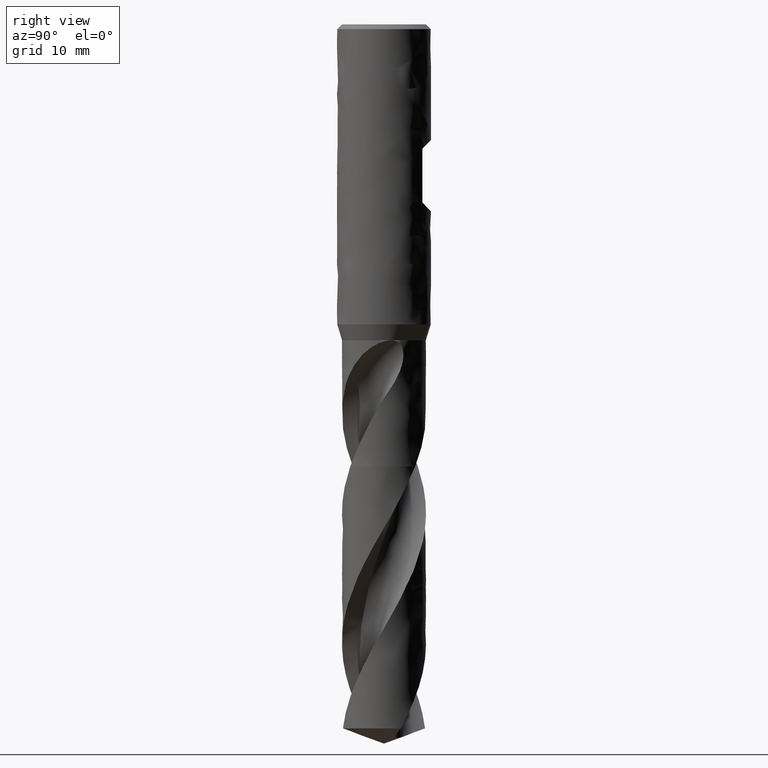
[diagram: clean part render]
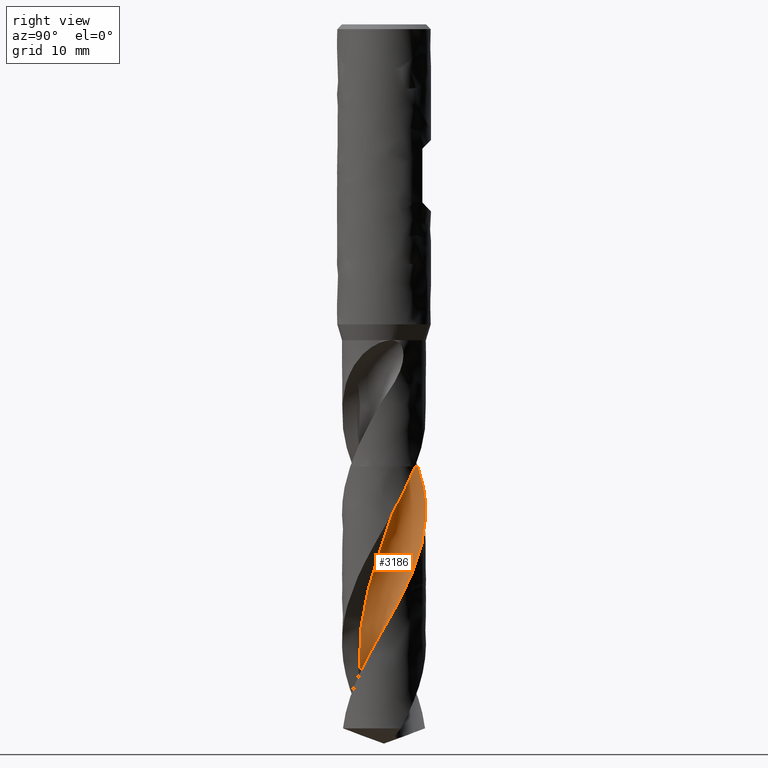
[diagram: same view with one face highlighted and labeled with its STEP entity id]
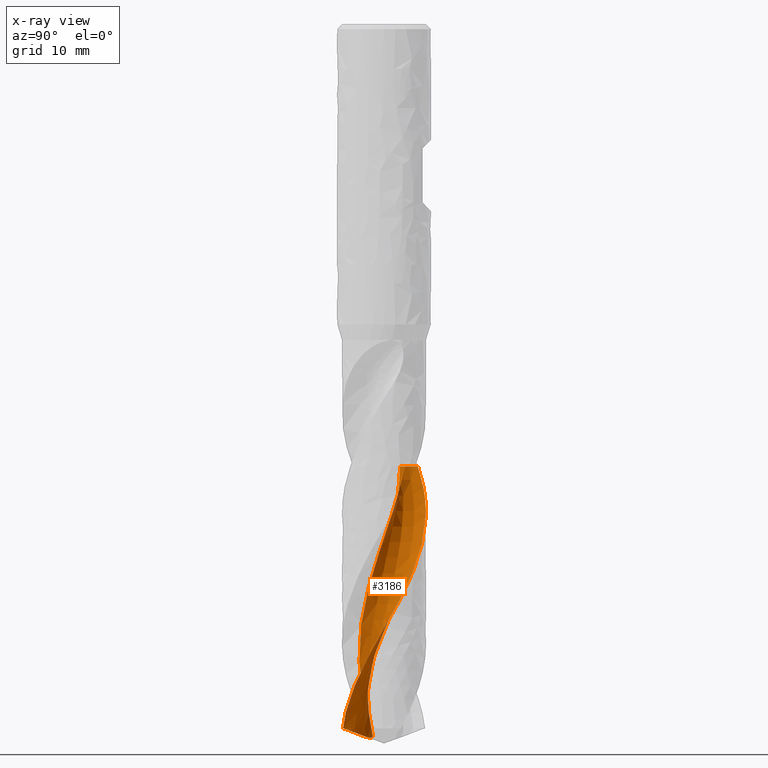
[diagram: x-ray of the same camera — body ghosted, the highlighted face saturated]
A machine part, right view. The second image highlights one B-rep face of the part: STEP entity #3186.
The next image is the same camera in x-ray: the body ghosted, the highlighted face saturated — about 0% of this face is hidden behind the body in this view.
In plain terms, the highlighted face is a freeform B-spline surface patch.
Its self-contained STEP definition (entity closure, byte-faithful):
#2135 = VERTEX_POINT('', #2136);
#2136 = CARTESIAN_POINT('', (2.09222723034149, 3.10219535097952, -65.75));
#2142 = EDGE_CURVE('', #2135, #2143, #2145, .T.);
#2143 = VERTEX_POINT('', #2144);
#2144 = CARTESIAN_POINT('', (-3.71662516383442, 5.02485794740039, -65.75));
#2145 = B_SPLINE_CURVE_WITH_KNOTS('', 3, (#2146, #2147, #2148, #2149, #2150, #2151, #2152, #2153, #2154, #2155, #2156, #2157, #2158, #2159, #2160, #2161, #2162, #2163, #2164, #2165, #2166, #2167, #2168, #2169, #2170, #2171, #2172, #2173, #2174, #2175, #2176, #2177, #2178, #2179, #2180, #2181, #2182, #2183, #2184, #2185, #2186, #2187, #2188, #2189, #2190, #2191, #2192, #2193, #2194, #2195, #2196, #2197, #2198, #2199, #2200, #2201, #2202, #2203, #2204, #2205, #2206, #2207, #2208, #2209, #2210, #2211, #2212, #2213, #2214, #2215, #2216, #2217, #2218, #2219, #2220, #2221, #2222, #2223, #2224), .UNSPECIFIED., .F., .U., (4, 3, 3, 3, 3, 3, 3, 3, 3, 3, 3, 3, 3, 3, 3, 3, 3, 3, 3, 3, 3, 3, 3, 3, 3, 3, 4), (0., 0.297014510261229, 0.593782973224138, 0.890310306346069, 1.1866005424003, 1.48265688577229, 1.77848175643172, 2.07407682288143, 2.3694430250398, 2.66458058771703, 2.95948902508184, 3.25416713627155, 3.54861299206276, 3.58751292539137, 3.61345819515835, 3.91046052384063, 4.20721706772343, 4.50373269941086, 4.8000114098919, 5.09605636419666, 5.39186994480124, 5.68745378406375, 5.98280878663291, 6.27793514247572, 6.5728323309087, 6.86749911577389, 7.15439348509255), .UNSPECIFIED.);
#2146 = CARTESIAN_POINT('', (2.09222723034149, 3.10219535097952, -65.75));
#2147 = CARTESIAN_POINT('', (2.01249219420907, 3.0435073478307, -65.75));
#2148 = CARTESIAN_POINT('', (1.93036695514038, 2.98793592757553, -65.75));
#2149 = CARTESIAN_POINT('', (1.84623743688504, 2.93574223199112, -65.75));
#2150 = CARTESIAN_POINT('', (1.76217761165801, 2.88359177374813, -65.75));
#2151 = CARTESIAN_POINT('', (1.67598532410208, 2.83473185057041, -65.75));
#2152 = CARTESIAN_POINT('', (1.58806493988209, 2.78939168569685, -65.75));
#2153 = CARTESIAN_POINT('', (1.50021599259328, 2.74408836054216, -65.75));
#2154 = CARTESIAN_POINT('', (1.41050454861415, 2.70222830797167, -65.75));
#2155 = CARTESIAN_POINT('', (1.31935080064919, 2.6640075931463, -65.75));
#2156 = CARTESIAN_POINT('', (1.22826993731892, 2.62581743880692, -65.75));
#2157 = CARTESIAN_POINT('', (1.13560704777205, 2.59120124191503, -65.75));
#2158 = CARTESIAN_POINT('', (1.0417954557945, 2.5603208798043, -65.75));
#2159 = CARTESIAN_POINT('', (0.948057919058069, 2.52946489477335, -65.75));
#2160 = CARTESIAN_POINT('', (0.853027552547269, 2.5022907988164, -65.75));
#2161 = CARTESIAN_POINT('', (0.75714805067193, 2.47892546710935, -65.75));
#2162 = CARTESIAN_POINT('', (0.661343512528576, 2.45557840367059, -65.75));
#2163 = CARTESIAN_POINT('', (0.56454224059093, 2.4359978488463, -65.75));
#2164 = CARTESIAN_POINT('', (0.467195491944108, 2.42027508102486, -65.75));
#2165 = CARTESIAN_POINT('', (0.369924364703264, 2.40456452704543, -65.75));
#2166 = CARTESIAN_POINT('', (0.271957636574711, 2.39268137539717, -65.75));
#2167 = CARTESIAN_POINT('', (0.173751289197768, 2.38468093566399, -65.75));
#2168 = CARTESIAN_POINT('', (0.0756209780225344, 2.37668669026616, -65.75));
#2169 = CARTESIAN_POINT('', (-0.0229006514128432, 2.37255674890775, -65.75));
#2170 = CARTESIAN_POINT('', (-0.121355743693428, 2.37231030449114, -65.75));
#2171 = CARTESIAN_POINT('', (-0.219734623052391, 2.37206405084423, -65.75));
#2172 = CARTESIAN_POINT('', (-0.318199288407277, 2.37569489380469, -65.75));
#2173 = CARTESIAN_POINT('', (-0.416292856405533, 2.38318598599179, -65.75));
#2174 = CARTESIAN_POINT('', (-0.514310271035814, 2.39067126258964, -65.75));
#2175 = CARTESIAN_POINT('', (-0.612108590954305, 2.40202235170289, -65.75));
#2176 = CARTESIAN_POINT('', (-0.709234728199119, 2.41718666508834, -65.75));
#2177 = CARTESIAN_POINT('', (-0.806285009046286, 2.43233913500695, -65.75));
#2178 = CARTESIAN_POINT('', (-0.902813856582139, 2.45132223840752, -65.75));
#2179 = CARTESIAN_POINT('', (-0.998374761623921, 2.47404816599572, -65.75));
#2180 = CARTESIAN_POINT('', (-1.09386034876716, 2.49675618177042, -65.75));
#2181 = CARTESIAN_POINT('', (-1.18852657436075, 2.52323608671275, -65.75));
#2182 = CARTESIAN_POINT('', (-1.28193623426634, 2.5533655866893, -65.75));
#2183 = CARTESIAN_POINT('', (-1.29427680375002, 2.55734606567129, -65.75));
#2184 = CARTESIAN_POINT('', (-1.30659689372086, 2.56139060484027, -65.75));
#2185 = CARTESIAN_POINT('', (-1.31889550995814, 2.56549887780537, -65.75));
#2186 = CARTESIAN_POINT('', (-1.32709837532918, 2.56823899176535, -65.75));
#2187 = CARTESIAN_POINT('', (-1.33529181080564, 2.57100749858763, -65.75));
#2188 = CARTESIAN_POINT('', (-1.34347552224454, 2.5738042988833, -65.75));
#2189 = CARTESIAN_POINT('', (-1.43715662004955, 2.60582000764762, -65.75));
#2190 = CARTESIAN_POINT('', (-1.5296412893836, 2.64157632904974, -65.75));
#2191 = CARTESIAN_POINT('', (-1.62049496096486, 2.68090525039063, -65.75));
#2192 = CARTESIAN_POINT('', (-1.71127344643041, 2.72020162501349, -65.75));
#2193 = CARTESIAN_POINT('', (-1.80056564394797, 2.76312615213074, -65.75));
#2194 = CARTESIAN_POINT('', (-1.88795267843024, 2.8094774701952, -65.75));
#2195 = CARTESIAN_POINT('', (-1.97526877057692, 2.85579115944229, -65.75));
#2196 = CARTESIAN_POINT('', (-2.06081916497615, 2.90559840109003, -65.75));
#2197 = CARTESIAN_POINT('', (-2.14420319013859, 2.95866592512454, -65.75));
#2198 = CARTESIAN_POINT('', (-2.22752058999793, 3.01169104727372, -65.75));
#2199 = CARTESIAN_POINT('', (-2.30880500147701, 3.06805391658055, -65.75));
#2200 = CARTESIAN_POINT('', (-2.38767634003427, 3.12749098121569, -65.75));
#2201 = CARTESIAN_POINT('', (-2.46648545116221, 3.18688115155682, -65.75));
#2202 = CARTESIAN_POINT('', (-2.54300799251727, 3.24943312004037, -65.75));
#2203 = CARTESIAN_POINT('', (-2.61688670971957, 3.31485485552993, -65.75));
#2204 = CARTESIAN_POINT('', (-2.69070768706879, 3.3802254607138, -65.75));
#2205 = CARTESIAN_POINT('', (-2.76200372327796, 3.44856295254131, -65.75));
#2206 = CARTESIAN_POINT('', (-2.83044248398811, 3.51954878740546, -65.75));
#2207 = CARTESIAN_POINT('', (-2.89882809226116, 3.59047949166696, -65.75));
#2208 = CARTESIAN_POINT('', (-2.96446700028252, 3.66416450236817, -65.75));
#2209 = CARTESIAN_POINT('', (-3.02705371794805, 3.74026088203081, -65.75));
#2210 = CARTESIAN_POINT('', (-3.08959198189043, 3.8162983489872, -65.75));
#2211 = CARTESIAN_POINT('', (-3.14917969378748, 3.89486127161846, -65.75));
#2212 = CARTESIAN_POINT('', (-3.20553995515333, 3.97558457542128, -65.75));
#2213 = CARTESIAN_POINT('', (-3.26185658567106, 4.05624538792045, -65.75));
#2214 = CARTESIAN_POINT('', (-3.31503789964963, 4.1391880285124, -65.75));
#2215 = CARTESIAN_POINT('', (-3.36483715056458, 4.22402766638412, -65.75));
#2216 = CARTESIAN_POINT('', (-3.4145977320584, 4.30880142576116, -65.75));
#2217 = CARTESIAN_POINT('', (-3.46105837754814, 4.39560018882727, -65.75));
#2218 = CARTESIAN_POINT('', (-3.50400385680113, 4.48402185789798, -65.75));
#2219 = CARTESIAN_POINT('', (-3.54691578269375, 4.57237444300036, -65.75));
#2220 = CARTESIAN_POINT('', (-3.58638422722846, 4.66248366695025, -65.75));
#2221 = CARTESIAN_POINT('', (-3.62222663700045, 4.75393274753515, -65.75));
#2222 = CARTESIAN_POINT('', (-3.6571236327752, 4.84296967889876, -65.75));
#2223 = CARTESIAN_POINT('', (-3.68863573000977, 4.93341031354849, -65.75));
#2224 = CARTESIAN_POINT('', (-3.71662515322433, 5.02485795064782, -65.75));
#2989 = EDGE_CURVE('', #2143, #2990, #2992, .T.);
#2990 = VERTEX_POINT('', #2991);
#2991 = CARTESIAN_POINT('', (-2.12546959105404, 5.87748917629838, -68.8945567822441));
#2992 = B_SPLINE_CURVE_WITH_KNOTS('', 3, (#2993, #2994, #2995, #2996, #2997, #2998, #2999, #3000, #3001, #3002, #3003, #3004, #3005, #3006, #3007, #3008), .UNSPECIFIED., .F., .U., (4, 3, 3, 3, 3, 4), (7.55446952319501, 7.57539301092448, 8.57247096501074, 9.56935932184845, 10.5660466159, 11.1832932503648), .UNSPECIFIED.);
#2993 = CARTESIAN_POINT('', (-3.71662516383442, 5.02485794740039, -65.75));
#2994 = CARTESIAN_POINT('', (-3.71382484418936, 5.02692919768618, -65.7560424933045));
#2995 = CARTESIAN_POINT('', (-3.71102278295596, 5.02899811453846, -65.7620850448587));
#2996 = CARTESIAN_POINT('', (-3.70821902957221, 5.03106466155212, -65.768127556224));
#2997 = CARTESIAN_POINT('', (-3.57461029646913, 5.12954291216897, -66.0560745250821));
#2998 = CARTESIAN_POINT('', (-3.43707942075809, 5.2226926503053, -66.344099700089));
#2999 = CARTESIAN_POINT('', (-3.29609816058956, 5.3102012123608, -66.6320740950077));
#3000 = CARTESIAN_POINT('', (-3.15514370841424, 5.39769313441086, -66.9199937307647));
#3001 = CARTESIAN_POINT('', (-3.01068356524325, 5.4795800794821, -67.2079759711759));
#3002 = CARTESIAN_POINT('', (-2.86324181499778, 5.55556894555798, -67.4959123064717));
#3003 = CARTESIAN_POINT('', (-2.71582980233415, 5.63154248541099, -67.7837905677801));
#3004 = CARTESIAN_POINT('', (-2.56537982397294, 5.7016502078226, -68.0717367502885));
#3005 = CARTESIAN_POINT('', (-2.41243128501278, 5.76564612988791, -68.359638539026));
#3006 = CARTESIAN_POINT('', (-2.31771053209168, 5.80527868841457, -68.5379355948982));
#3007 = CARTESIAN_POINT('', (-2.2220132534518, 5.84257620368706, -68.7162508472444));
#3008 = CARTESIAN_POINT('', (-2.12546959105388, 5.87748917629844, -68.8945567822444));
#3011 = VERTEX_POINT('', #3012);
#3012 = CARTESIAN_POINT('', (2.56306106294898, -5.70028227262429, -102.428453775909));
#3148 = EDGE_CURVE('', #3011, #3149, #3151, .T.);
#3149 = VERTEX_POINT('', #3150);
#3150 = CARTESIAN_POINT('', (1.32876363019772, -6.10711775022094, -104.725186035836));
#3151 = B_SPLINE_CURVE_WITH_KNOTS('', 3, (#3152, #3153, #3154, #3155, #3156, #3157, #3158, #3159, #3160, #3161), .UNSPECIFIED., .F., .U., (4, 3, 3, 4), (0., 0.99659164259794, 1.99299236130841, 2.639953785996), .UNSPECIFIED.);
#3152 = CARTESIAN_POINT('', (2.563061062949, -5.70028227262429, -102.428453775909));
#3153 = CARTESIAN_POINT('', (2.41359877592484, -5.76748613199993, -102.717416844768));
#3154 = CARTESIAN_POINT('', (2.26148082721132, -5.82881176622048, -103.006445135786));
#3155 = CARTESIAN_POINT('', (2.1072380236213, -5.88405029820482, -103.295431037253));
#3156 = CARTESIAN_POINT('', (1.95302476938169, -5.93927824776521, -103.584361575712));
#3157 = CARTESIAN_POINT('', (1.79662747761599, -5.9884429600531, -103.873356995217));
#3158 = CARTESIAN_POINT('', (1.63858970167529, -6.03137826616461, -104.162309121208));
#3159 = CARTESIAN_POINT('', (1.53597602149913, -6.05925609311686, -104.349925283648));
#3160 = CARTESIAN_POINT('', (1.43265081162183, -6.08451436938468, -104.53756112887));
#3161 = CARTESIAN_POINT('', (1.32876363019772, -6.10711775022094, -104.725186035836));
#3186 = ADVANCED_FACE('', (#3187), #3404, .T.);
#3187 = FACE_OUTER_BOUND('', #3188, .T.);
#3188 = EDGE_LOOP('', (#3189, #3190, #3233, #3366, #3367, #3403));
#3189 = ORIENTED_EDGE('', *, *, #2142, .F.);
#3190 = ORIENTED_EDGE('', *, *, #3191, .F.);
#3191 = EDGE_CURVE('', #3192, #2135, #3194, .T.);
#3192 = VERTEX_POINT('', #3193);
#3193 = CARTESIAN_POINT('', (-3.33309751933911, -1.70166304379255, -105.637895377887));
#3194 = (
   BOUNDED_CURVE ()
   B_SPLINE_CURVE (3, (#3195, #3196, #3197, #3198, #3199, #3200, #3201, #3202, #3203, #3204, #3205, #3206, #3207, #3208, #3209, #3210, #3211, #3212, #3213, #3214, #3215, #3216, #3217, #3218, #3219, #3220, #3221, #3222, #3223, #3224, #3225, #3226, #3227, #3228, #3229, #3230, #3231, #3232), .UNSPECIFIED., .F., .U.)
   B_SPLINE_CURVE_WITH_KNOTS ((4, 1, 1, 1, 1, 1, 1, 1, 1, 1, 1, 1, 1, 1, 1, 1, 1, 1, 1, 1, 1, 1, 1, 1, 1, 1, 1, 1, 1, 1, 1, 1, 1, 1, 1, 4), (1.41210462211272, 2.31038461538462, 3.46557692307692, 4.62076923076923, 5.77596153846154, 6.93115384615385, 8.08634615384615, 9.24153846153846, 10.3967307692308, 11.5519230769231, 12.7071153846154, 13.8623076923077, 15.0175, 16.1726923076923, 17.3278846153846, 18.4830769230769, 19.6382692307692, 20.7934615384615, 21.9486538461538, 23.1038461538461, 24.2590384615385, 25.4142307692308, 26.5694230769231, 27.7246153846154, 28.8798076923077, 30.035, 31.1901923076923, 32.3453846153846, 33.5005769230769, 34.6557692307692, 35.8109615384615, 36.9661538461538, 38.1213461538462, 39.2765384615385, 40.4317307692308, 41.3), .UNSPECIFIED.)
   CURVE ()
   GEOMETRIC_REPRESENTATION_ITEM ()
   RATIONAL_B_SPLINE_CURVE ((1., 1., 1., 1., 1., 1., 1., 1., 1., 1., 1., 1., 1., 1., 1., 1., 1., 1., 1., 1., 1., 1., 1., 1., 1., 1., 1., 1., 1., 1., 1., 1., 1., 1., 1., 1., 1., 1.))
   REPRESENTATION_ITEM ('')
);
#3195 = CARTESIAN_POINT('', (-3.33309751933911, -1.70166304379254, -105.637895377887));
#3196 = CARTESIAN_POINT('', (-3.28426278029696, -1.79176468404104, -105.338468713463));
#3197 = CARTESIAN_POINT('', (-3.16440122014795, -1.99300794079216, -104.653977946475));
#3198 = CARTESIAN_POINT('', (-2.94916200744652, -2.28826212789611, -103.584423076923));
#3199 = CARTESIAN_POINT('', (-2.68540059389889, -2.58054530868536, -102.429230769231));
#3200 = CARTESIAN_POINT('', (-2.39331095459424, -2.84321405729384, -101.274038461538));
#3201 = CARTESIAN_POINT('', (-2.07614004645534, -3.07359202170212, -100.118846153846));
#3202 = CARTESIAN_POINT('', (-1.73737859258955, -3.2693491131357, -98.9636538461538));
#3203 = CARTESIAN_POINT('', (-1.38072716343748, -3.42852471552745, -97.8084615384615));
#3204 = CARTESIAN_POINT('', (-1.01005739812146, -3.549545311931, -96.6532692307692));
#3205 = CARTESIAN_POINT('', (-0.62937257523785, -3.63123877651107, -95.4980769230769));
#3206 = CARTESIAN_POINT('', (-0.242766878146462, -3.67284458297022, -94.3428846153846));
#3207 = CARTESIAN_POINT('', (0.145615987448473, -3.67402002809336, -93.1876923076923));
#3208 = CARTESIAN_POINT('', (0.531624512180888, -3.63484238687778, -92.0325));
#3209 = CARTESIAN_POINT('', (0.911141032293483, -3.55580700955868, -90.8773076923077));
#3210 = CARTESIAN_POINT('', (1.28012293157413, -3.43782139044858, -89.7221153846154));
#3211 = CARTESIAN_POINT('', (1.6346430169727, -3.2821952774299, -88.5669230769231));
#3212 = CARTESIAN_POINT('', (1.97092869935666, -3.0906269238025, -87.4117307692308));
#3213 = CARTESIAN_POINT('', (2.28539962190615, -2.86518561749383, -86.2565384615385));
#3214 = CARTESIAN_POINT('', (2.57470339309047, -2.6082906543626, -85.1013461538462));
#3215 = CARTESIAN_POINT('', (2.83574909811711, -2.3226869527362, -83.9461538461539));
#3216 = CARTESIAN_POINT('', (3.06573828228179, -2.01141753508234, -82.7909615384615));
#3217 = CARTESIAN_POINT('', (3.2621931215765, -1.67779312967242, -81.6357692307692));
#3218 = CARTESIAN_POINT('', (3.42298152009816, -1.32535917003211, -80.4805769230769));
#3219 = CARTESIAN_POINT('', (3.54633890005647, -0.957860492803461, -79.3253846153846));
#3220 = CARTESIAN_POINT('', (3.63088647839688, -0.579204054897017, -78.1701923076923));
#3221 = CARTESIAN_POINT('', (3.67564585379312, -0.19342000947049, -77.015));
#3222 = CARTESIAN_POINT('', (3.68004975976666, 0.19537850702174, -75.8598076923077));
#3223 = CARTESIAN_POINT('', (3.64394887022815, 0.583036502096074, -74.7046153846154));
#3224 = CARTESIAN_POINT('', (3.56761458572894, 0.965398821023587, -73.5494230769231));
#3225 = CARTESIAN_POINT('', (3.45173773288669, 1.33835191623989, -72.3942307692308));
#3226 = CARTESIAN_POINT('', (3.29742325860166, 1.69786570656426, -71.2390384615385));
#3227 = CARTESIAN_POINT('', (3.10618061147693, 2.04003364095605, -70.0838461538461));
#3228 = CARTESIAN_POINT('', (2.8799111243509, 2.36111617064373, -68.9286538461539));
#3229 = CARTESIAN_POINT('', (2.62088782963223, 2.6575663917448, -67.7734615384615));
#3230 = CARTESIAN_POINT('', (2.355684037953, 2.90388154867323, -66.7139102564103));
#3231 = CARTESIAN_POINT('', (2.17295799076535, 3.04480854232061, -66.0394230769231));
#3232 = CARTESIAN_POINT('', (2.09222723034149, 3.10219535097952, -65.75));
#3233 = ORIENTED_EDGE('', *, *, #3234, .T.);
#3234 = EDGE_CURVE('', #3192, #3149, #3235, .T.);
#3235 = B_SPLINE_CURVE_WITH_KNOTS('', 3, (#3236, #3237, #3238, #3239, #3240, #3241, #3242, #3243, #3244, #3245, #3246, #3247, #3248, #3249, #3250, #3251, #3252, #3253, #3254, #3255, #3256, #3257, #3258, #3259, #3260, #3261, #3262, #3263, #3264, #3265, #3266, #3267, #3268, #3269, #3270, #3271, #3272, #3273, #3274, #3275, #3276, #3277, #3278, #3279, #3280, #3281, #3282, #3283, #3284, #3285, #3286, #3287, #3288, #3289, #3290, #3291, #3292, #3293, #3294, #3295, #3296, #3297, #3298, #3299, #3300, #3301, #3302, #3303, #3304, #3305, #3306, #3307, #3308, #3309, #3310, #3311, #3312, #3313, #3314, #3315, #3316, #3317, #3318, #3319, #3320, #3321, #3322, #3323, #3324, #3325, #3326, #3327, #3328, #3329, #3330, #3331, #3332, #3333, #3334, #3335, #3336, #3337, #3338, #3339, #3340, #3341, #3342, #3343, #3344, #3345, #3346, #3347, #3348, #3349, #3350, #3351, #3352, #3353, #3354, #3355, #3356, #3357, #3358, #3359, #3360, #3361, #3362, #3363, #3364, #3365), .UNSPECIFIED., .F., .U., (4, 3, 3, 3, 3, 3, 3, 3, 3, 3, 3, 3, 3, 3, 3, 3, 3, 3, 3, 3, 3, 3, 3, 3, 3, 3, 3, 3, 3, 3, 3, 3, 3, 3, 3, 3, 3, 3, 3, 3, 3, 3, 3, 4), (0., 0.197253905560519, 0.394386729142981, 0.591362583388969, 0.788143772579992, 0.98469617466098, 1.18099786216172, 1.31192652934068, 1.44279127386544, 1.57360525332034, 1.7043873550422, 1.83516126872887, 1.96595344147953, 2.09679008338859, 2.22769376737675, 2.35868042529797, 2.48975751021621, 2.6209237406035, 2.75217032854413, 2.88348317484926, 3.01484536063895, 3.14623937499218, 3.27764876460937, 3.40905913413271, 3.60615081018889, 3.64507649742517, 3.84312761284134, 3.88208776611527, 3.92106437372505, 4.11957304255541, 4.31776717477151, 4.51569087916405, 4.71338242329098, 4.91087413320279, 5.10819286167034, 5.30536067120146, 5.50239554939481, 5.69931207163639, 5.99432916068265, 6.28902883680321, 6.58344428842997, 6.87759810890358, 7.17150462234195, 7.45793292600682), .UNSPECIFIED.);
#3236 = CARTESIAN_POINT('', (-3.33309751933911, -1.70166304379255, -105.637895377887));
#3237 = CARTESIAN_POINT('', (-3.27293787917276, -1.68677760297301, -105.65986069241));
#3238 = CARTESIAN_POINT('', (-3.21217637223552, -1.67391883861992, -105.681657901912));
#3239 = CARTESIAN_POINT('', (-3.15098442958481, -1.66316972229604, -105.703180828021));
#3240 = CARTESIAN_POINT('', (-3.0898300488847, -1.65242720419014, -105.724690542537));
#3241 = CARTESIAN_POINT('', (-3.02817931437933, -1.6437803145916, -105.745949834207));
#3242 = CARTESIAN_POINT('', (-2.9662138003387, -1.63729893892265, -105.76683510729));
#3243 = CARTESIAN_POINT('', (-2.90429762706967, -1.63082272412554, -105.787703750228));
#3244 = CARTESIAN_POINT('', (-2.84199673901714, -1.62650150683384, -105.808222831591));
#3245 = CARTESIAN_POINT('', (-2.77950243219219, -1.62438883407051, -105.828249123227));
#3246 = CARTESIAN_POINT('', (-2.7170698865294, -1.62227824919537, -105.848255623508));
#3247 = CARTESIAN_POINT('', (-2.65436988573008, -1.62236970339561, -105.86779418715));
#3248 = CARTESIAN_POINT('', (-2.59160305639839, -1.62469626035603, -105.886700525989));
#3249 = CARTESIAN_POINT('', (-2.52890920274872, -1.62702011235137, -105.905584883425));
#3250 = CARTESIAN_POINT('', (-2.46607033187741, -1.63157723993512, -105.923861935371));
#3251 = CARTESIAN_POINT('', (-2.40329604949, -1.63837492829569, -105.941346769743));
#3252 = CARTESIAN_POINT('', (-2.34060183952955, -1.64516394579004, -105.958809301141));
#3253 = CARTESIAN_POINT('', (-2.27788994756495, -1.65419725041916, -105.975504052915));
#3254 = CARTESIAN_POINT('', (-2.21537844709271, -1.66544981275985, -105.991229410572));
#3255 = CARTESIAN_POINT('', (-2.1736847278772, -1.67295501054176, -106.001717858966));
#3256 = CARTESIAN_POINT('', (-2.13204864484442, -1.68145213349596, -106.01178277968));
#3257 = CARTESIAN_POINT('', (-2.09053693159962, -1.6909240749442, -106.021362015252));
#3258 = CARTESIAN_POINT('', (-2.04904548541281, -1.70039139195342, -106.030936574002));
#3259 = CARTESIAN_POINT('', (-2.00765221980069, -1.71083859676069, -106.040031779197));
#3260 = CARTESIAN_POINT('', (-1.96642500773391, -1.72223974472046, -106.048585911747));
#3261 = CARTESIAN_POINT('', (-1.92521378853296, -1.73363646994533, -106.057136725977));
#3262 = CARTESIAN_POINT('', (-1.88414198767918, -1.74599378535398, -106.065152191551));
#3263 = CARTESIAN_POINT('', (-1.84327799193778, -1.75927617240286, -106.072573674166));
#3264 = CARTESIAN_POINT('', (-1.80242395424179, -1.7725553226999, -106.079993348258));
#3265 = CARTESIAN_POINT('', (-1.76175089985335, -1.78676780629948, -106.086823964002));
#3266 = CARTESIAN_POINT('', (-1.72132675719427, -1.80186822694872, -106.093013130247));
#3267 = CARTESIAN_POINT('', (-1.68090514541899, -1.81696770218744, -106.099201908999));
#3268 = CARTESIAN_POINT('', (-1.6407057827846, -1.83296493564953, -106.10475318302));
#3269 = CARTESIAN_POINT('', (-1.60079479181806, -1.84980501207584, -106.109624164385));
#3270 = CARTESIAN_POINT('', (-1.56087822835379, -1.86664743976644, -106.114495825852));
#3271 = CARTESIAN_POINT('', (-1.52122395145092, -1.88434391771072, -106.118690024987));
#3272 = CARTESIAN_POINT('', (-1.48189462277157, -1.9028312041106, -106.122176662617));
#3273 = CARTESIAN_POINT('', (-1.4425519221747, -1.92132477616235, -106.125664485698));
#3274 = CARTESIAN_POINT('', (-1.40350911764116, -1.94062145190855, -106.128446408355));
#3275 = CARTESIAN_POINT('', (-1.36482363514478, -1.96065171551521, -106.130507279823));
#3276 = CARTESIAN_POINT('', (-1.32611832979801, -1.98069224284079, -106.132569207303));
#3277 = CARTESIAN_POINT('', (-1.28774676784632, -2.00147934016453, -106.13391062054));
#3278 = CARTESIAN_POINT('', (-1.24975952644748, -2.02293995452858, -106.134532283175));
#3279 = CARTESIAN_POINT('', (-1.21174820665201, -2.04441417180683, -106.135154339854));
#3280 = CARTESIAN_POINT('', (-1.17409947140688, -2.06657512012122, -106.135056199881));
#3281 = CARTESIAN_POINT('', (-1.13685589437364, -2.08934926843415, -106.134253994665));
#3282 = CARTESIAN_POINT('', (-1.09958660613527, -2.11213913894257, -106.133451235645));
#3283 = CARTESIAN_POINT('', (-1.06270283516195, -2.13555520937976, -106.131943191386));
#3284 = CARTESIAN_POINT('', (-1.02623866611043, -2.1595263999519, -106.129759418604));
#3285 = CARTESIAN_POINT('', (-0.989749697793233, -2.18351389332044, -106.127574160638));
#3286 = CARTESIAN_POINT('', (-0.953662899262094, -2.20806891445406, -106.124711415364));
#3287 = CARTESIAN_POINT('', (-0.918004102999073, -2.23312523097363, -106.121211236672));
#3288 = CARTESIAN_POINT('', (-0.882323460765377, -2.25819689797087, -106.117708913633));
#3289 = CARTESIAN_POINT('', (-0.847055577093036, -2.28378140347966, -106.113567080606));
#3290 = CARTESIAN_POINT('', (-0.812218882082151, -2.30981898167912, -106.108832929666));
#3291 = CARTESIAN_POINT('', (-0.777364600157408, -2.33586970465724, -106.104096388743));
#3292 = CARTESIAN_POINT('', (-0.742928322476122, -2.36238402466335, -106.09876531523));
#3293 = CARTESIAN_POINT('', (-0.708922324478865, -2.38930943692414, -106.092890774322));
#3294 = CARTESIAN_POINT('', (-0.67490354906904, -2.41624496613845, -106.087014026114));
#3295 = CARTESIAN_POINT('', (-0.641303726204787, -2.44360104586745, -106.080591585505));
#3296 = CARTESIAN_POINT('', (-0.608130382646298, -2.47133251353522, -106.073675592295));
#3297 = CARTESIAN_POINT('', (-0.574949001311434, -2.4990707004333, -106.066757923366));
#3298 = CARTESIAN_POINT('', (-0.542184390784269, -2.52719270263198, -106.059344545111));
#3299 = CARTESIAN_POINT('', (-0.509840694214068, -2.55566026302516, -106.051486522425));
#3300 = CARTESIAN_POINT('', (-0.477493212898614, -2.58413115459181, -106.043627580221));
#3301 = CARTESIAN_POINT('', (-0.445558310178818, -2.61295508999538, -106.035321944565));
#3302 = CARTESIAN_POINT('', (-0.414037941464889, -2.64209997101765, -106.026618126268));
#3303 = CARTESIAN_POINT('', (-0.382517337706848, -2.67124506937027, -106.017914243067));
#3304 = CARTESIAN_POINT('', (-0.351404073878675, -2.70071777488603, -106.008810248026));
#3305 = CARTESIAN_POINT('', (-0.320698886119455, -2.7304912665882, -105.999351207981));
#3306 = CARTESIAN_POINT('', (-0.274646683838649, -2.77514609407943, -105.985164366692));
#3307 = CARTESIAN_POINT('', (-0.22949547766464, -2.8204933041614, -105.970174525712));
#3308 = CARTESIAN_POINT('', (-0.18524605663238, -2.86646033468982, -105.954517378409));
#3309 = CARTESIAN_POINT('', (-0.176506777744737, -2.87553884216073, -105.951425085365));
#3310 = CARTESIAN_POINT('', (-0.167802255844053, -2.88464200674155, -105.94830656027));
#3311 = CARTESIAN_POINT('', (-0.159132499473137, -2.89376934976533, -105.945162756294));
#3312 = CARTESIAN_POINT('', (-0.11502139851238, -2.94020861892129, -105.929167306287));
#3313 = CARTESIAN_POINT('', (-0.071800693448661, -2.98728287369551, -105.912515444551));
#3314 = CARTESIAN_POINT('', (-0.0294728755261134, -3.03493743421379, -105.895321025097));
#3315 = CARTESIAN_POINT('', (-0.0211462459560222, -3.0443119281574, -105.891938579026));
#3316 = CARTESIAN_POINT('', (-0.0128538398020429, -3.05370928768199, -105.888534946976));
#3317 = CARTESIAN_POINT('', (-0.00459569058200352, -3.06312914908139, -105.885110911229));
#3318 = CARTESIAN_POINT('', (0.0036659463645777, -3.072552988842, -105.881685429382));
#3319 = CARTESIAN_POINT('', (0.0118934002258388, -3.08199946678554, -105.878239483945));
#3320 = CARTESIAN_POINT('', (0.0200866318612421, -3.09146823326058, -105.874773831977));
#3321 = CARTESIAN_POINT('', (0.061814930066314, -3.13969285678976, -105.857123194814));
#3322 = CARTESIAN_POINT('', (0.102663439098935, -3.188503982934, -105.838959350496));
#3323 = CARTESIAN_POINT('', (0.14262455006082, -3.23786031317589, -105.820372461202));
#3324 = CARTESIAN_POINT('', (0.18252234271717, -3.28713843840489, -105.8018150228));
#3325 = CARTESIAN_POINT('', (0.22154710466112, -3.33697446494352, -105.78283034045));
#3326 = CARTESIAN_POINT('', (0.259686920741515, -3.3873331582379, -105.763493783259));
#3327 = CARTESIAN_POINT('', (0.297774696595804, -3.43762313914572, -105.744183610012));
#3328 = CARTESIAN_POINT('', (0.334990248831478, -3.48844810252898, -105.724517135695));
#3329 = CARTESIAN_POINT('', (0.371317355490794, -3.53977650379954, -105.704557672154));
#3330 = CARTESIAN_POINT('', (0.407601851232149, -3.5910446979549, -105.684621620637));
#3331 = CARTESIAN_POINT('', (0.443009386686276, -3.64282854577555, -105.66438795737));
#3332 = CARTESIAN_POINT('', (0.477519638530017, -3.69509849018541, -105.643910312429));
#3333 = CARTESIAN_POINT('', (0.511995006084087, -3.7473155981254, -105.623453367079));
#3334 = CARTESIAN_POINT('', (0.545583629457882, -3.80003113365092, -105.602747630868));
#3335 = CARTESIAN_POINT('', (0.578261364495693, -3.85321628472164, -105.581839037395));
#3336 = CARTESIAN_POINT('', (0.610910477360934, -3.90635485133446, -105.560948757595));
#3337 = CARTESIAN_POINT('', (0.642658501839796, -3.95997565009966, -105.539850620438));
#3338 = CARTESIAN_POINT('', (0.673477762782591, -4.01404967788785, -105.518584490175));
#3339 = CARTESIAN_POINT('', (0.704273451659423, -4.06808234723619, -105.49733462528));
#3340 = CARTESIAN_POINT('', (0.734149582290004, -4.12258128906353, -105.475911563165));
#3341 = CARTESIAN_POINT('', (0.763075219056462, -4.17751657155078, -105.454350421171));
#3342 = CARTESIAN_POINT('', (0.791981354041163, -4.23241481644752, -105.432803815787));
#3343 = CARTESIAN_POINT('', (0.819945705118125, -4.2877629954003, -105.41111370355));
#3344 = CARTESIAN_POINT('', (0.846934319136814, -4.34352963429092, -105.389311528515));
#3345 = CARTESIAN_POINT('', (0.873906721492223, -4.39926277498221, -105.367522449725));
#3346 = CARTESIAN_POINT('', (0.899911666126839, -4.4554286315745, -105.345615635586));
#3347 = CARTESIAN_POINT('', (0.924912400201226, -4.51199364672554, -105.323619732074));
#3348 = CARTESIAN_POINT('', (0.962368088056595, -4.59673842040809, -105.290665831855));
#3349 = CARTESIAN_POINT('', (0.997589183949209, -4.68242365330781, -105.257495255301));
#3350 = CARTESIAN_POINT('', (1.03044100923183, -4.76892505892882, -105.224196168827));
#3351 = CARTESIAN_POINT('', (1.06325748878581, -4.85533339650309, -105.190932909296));
#3352 = CARTESIAN_POINT('', (1.093730992221, -4.94261263654528, -105.157519524225));
#3353 = CARTESIAN_POINT('', (1.1217153603153, -5.03062185371996, -105.124037896398));
#3354 = CARTESIAN_POINT('', (1.14967273875369, -5.11854618998967, -105.090588560085));
#3355 = CARTESIAN_POINT('', (1.17516508921631, -5.20726068113658, -105.057047590776));
#3356 = CARTESIAN_POINT('', (1.19803642584542, -5.29660395797439, -105.02349400882));
#3357 = CARTESIAN_POINT('', (1.22088743794964, -5.38586784025455, -104.989970244125));
#3358 = CARTESIAN_POINT('', (1.2411390783225, -5.47582696908803, -104.956408458013));
#3359 = CARTESIAN_POINT('', (1.25862759056549, -5.56629549367816, -104.922887565553));
#3360 = CARTESIAN_POINT('', (1.27610139950765, -5.65668795771412, -104.889394855467));
#3361 = CARTESIAN_POINT('', (1.29083075000372, -5.74766344312171, -104.855915351646));
#3362 = CARTESIAN_POINT('', (1.30264685281638, -5.83900730876456, -104.822530158728));
#3363 = CARTESIAN_POINT('', (1.31416230460057, -5.92802700479032, -104.789994424617));
#3364 = CARTESIAN_POINT('', (1.32292050712614, -6.01747369847935, -104.757520039681));
#3365 = CARTESIAN_POINT('', (1.32876363019772, -6.10711775022094, -104.725186035836));
#3366 = ORIENTED_EDGE('', *, *, #3148, .F.);
#3367 = ORIENTED_EDGE('', *, *, #3368, .T.);
#3368 = EDGE_CURVE('', #3011, #2990, #3369, .T.);
#3369 = B_SPLINE_CURVE_WITH_KNOTS('', 3, (#3370, #3371, #3372, #3373, #3374, #3375, #3376, #3377, #3378, #3379, #3380, #3381, #3382, #3383, #3384, #3385, #3386, #3387, #3388, #3389, #3390, #3391, #3392, #3393, #3394, #3395, #3396, #3397, #3398, #3399, #3400, #3401, #3402), .UNSPECIFIED., .F., .U., (4, 1, 1, 1, 1, 1, 1, 1, 1, 1, 1, 1, 1, 1, 1, 1, 1, 1, 1, 1, 1, 1, 1, 1, 1, 1, 1, 1, 1, 1, 4), (4.62154622409105, 5.77596153846154, 6.93115384615385, 8.08634615384615, 9.24153846153846, 10.3967307692308, 11.5519230769231, 12.7071153846154, 13.8623076923077, 15.0175, 16.1726923076923, 17.3278846153846, 18.4830769230769, 19.6382692307692, 20.7934615384615, 21.9486538461538, 23.1038461538461, 24.2590384615385, 25.4142307692308, 26.5694230769231, 27.7246153846154, 28.8798076923077, 30.035, 31.1901923076923, 32.3453846153846, 33.5005769230769, 34.6557692307692, 35.8109615384615, 36.9661538461538, 38.1213461538462, 38.1554432177557), .UNSPECIFIED.);
#3370 = CARTESIAN_POINT('', (2.56306106294898, -5.70028227262429, -102.428453775909));
#3371 = CARTESIAN_POINT('', (2.76173903083509, -5.60593473875229, -102.043648671119));
#3372 = CARTESIAN_POINT('', (3.14894584425953, -5.39666607355678, -101.273779463765));
#3373 = CARTESIAN_POINT('', (3.6928931622327, -5.0247935885169, -100.118846153846));
#3374 = CARTESIAN_POINT('', (4.19435102874665, -4.59908073277429, -98.9636538461538));
#3375 = CARTESIAN_POINT('', (4.64800114333834, -4.12436182494585, -97.8084615384615));
#3376 = CARTESIAN_POINT('', (5.04916339246029, -3.6058774834422, -96.6532692307692));
#3377 = CARTESIAN_POINT('', (5.39371878646702, -3.0493036694852, -95.4980769230769));
#3378 = CARTESIAN_POINT('', (5.67814865098149, -2.460692960881, -94.3428846153846));
#3379 = CARTESIAN_POINT('', (5.89956787496757, -1.84641254753828, -93.1876923076923));
#3380 = CARTESIAN_POINT('', (6.05575190718471, -1.21307939463467, -92.0325));
#3381 = CARTESIAN_POINT('', (6.14515728801451, -0.567493221585058, -90.8773076923077));
#3382 = CARTESIAN_POINT('', (6.16693555038629, 0.0834320878927689, -89.7221153846154));
#3383 = CARTESIAN_POINT('', (6.12094038455251, 0.732738005634101, -88.5669230769231));
#3384 = CARTESIAN_POINT('', (6.00772801940154, 1.37349116778204, -87.4117307692308));
#3385 = CARTESIAN_POINT('', (5.82855083197268, 1.99885283007385, -86.2565384615385));
#3386 = CARTESIAN_POINT('', (5.58534425523118, 2.60214733222366, -85.1013461538461));
#3387 = CARTESIAN_POINT('', (5.28070711189039, 3.17692894361208, -83.9461538461538));
#3388 = CARTESIAN_POINT('', (4.91787555865154, 3.71704647716868, -82.7909615384615));
#3389 = CARTESIAN_POINT('', (4.50069088030935, 4.2167050778151, -81.6357692307692));
#3390 = CARTESIAN_POINT('', (4.03356142633022, 4.67052461603276, -80.4805769230769));
#3391 = CARTESIAN_POINT('', (3.52141903349852, 5.07359414578593, -79.3253846153846));
#3392 = CARTESIAN_POINT('', (2.96967032624725, 5.42152191925895, -78.1701923076923));
#3393 = CARTESIAN_POINT('', (2.3841433326435, 5.71048048740513, -77.015));
#3394 = CARTESIAN_POINT('', (1.77102989221118, 5.93724645879267, -75.8598076923077));
#3395 = CARTESIAN_POINT('', (1.13682438445341, 6.0992345249399, -74.7046153846154));
#3396 = CARTESIAN_POINT('', (0.488259288223737, 6.19452544197859, -73.5494230769231));
#3397 = CARTESIAN_POINT('', (-0.167761688982732, 6.22188758420545, -72.3942307692308));
#3398 = CARTESIAN_POINT('', (-0.82423288813649, 6.18079220676718, -71.2390384615385));
#3399 = CARTESIAN_POINT('', (-1.47411557102189, 6.07142086469285, -70.0838461538462));
#3400 = CARTESIAN_POINT('', (-1.90457484857024, 5.95184794832659, -69.3023522607481));
#3401 = CARTESIAN_POINT('', (-2.11931594213839, 5.87957090964208, -68.9059224702141));
#3402 = CARTESIAN_POINT('', (-2.12546959105398, 5.8774891762984, -68.8945567822443));
#3403 = ORIENTED_EDGE('', *, *, #2989, .F.);
#3404 = (
   BOUNDED_SURFACE ()
   B_SPLINE_SURFACE (3, 2, ((#3405, #3406, #3407, #3408, #3409), (#3410, #3411, #3412, #3413, #3414), (#3415, #3416, #3417, #3418, #3419), (#3420, #3421, #3422, #3423, #3424), (#3425, #3426, #3427, #3428, #3429), (#3430, #3431, #3432, #3433, #3434), (#3435, #3436, #3437, #3438, #3439), (#3440, #3441, #3442, #3443, #3444), (#3445, #3446, #3447, #3448, #3449), (#3450, #3451, #3452, #3453, #3454), (#3455, #3456, #3457, #3458, #3459), (#3460, #3461, #3462, #3463, #3464), (#3465, #3466, #3467, #3468, #3469), (#3470, #3471, #3472, #3473, #3474), (#3475, #3476, #3477, #3478, #3479), (#3480, #3481, #3482, #3483, #3484), (#3485, #3486, #3487, #3488, #3489), (#3490, #3491, #3492, #3493, #3494), (#3495, #3496, #3497, #3498, #3499), (#3500, #3501, #3502, #3503, #3504), (#3505, #3506, #3507, #3508, #3509), (#3510, #3511, #3512, #3513, #3514), (#3515, #3516, #3517, #3518, #3519), (#3520, #3521, #3522, #3523, #3524), (#3525, #3526, #3527, #3528, #3529), (#3530, #3531, #3532, #3533, #3534), (#3535, #3536, #3537, #3538, #3539), (#3540, #3541, #3542, #3543, #3544), (#3545, #3546, #3547, #3548, #3549), (#3550, #3551, #3552, #3553, #3554), (#3555, #3556, #3557, #3558, #3559), (#3560, #3561, #3562, #3563, #3564), (#3565, #3566, #3567, #3568, #3569), (#3570, #3571, #3572, #3573, #3574), (#3575, #3576, #3577, #3578, #3579), (#3580, #3581, #3582, #3583, #3584), (#3585, #3586, #3587, #3588, #3589), (#3590, #3591, #3592, #3593, #3594)), .UNSPECIFIED., .F., .F., .U.)
   B_SPLINE_SURFACE_WITH_KNOTS ((4, 1, 1, 1, 1, 1, 1, 1, 1, 1, 1, 1, 1, 1, 1, 1, 1, 1, 1, 1, 1, 1, 1, 1, 1, 1, 1, 1, 1, 1, 1, 1, 1, 1, 1, 4), (3, 2, 3), (0.914845660144061, 2.31038461538462, 3.46557692307692, 4.62076923076923, 5.77596153846154, 6.93115384615385, 8.08634615384615, 9.24153846153846, 10.3967307692308, 11.5519230769231, 12.7071153846154, 13.8623076923077, 15.0175, 16.1726923076923, 17.3278846153846, 18.4830769230769, 19.6382692307692, 20.7934615384615, 21.9486538461538, 23.1038461538461, 24.2590384615385, 25.4142307692308, 26.5694230769231, 27.7246153846154, 28.8798076923077, 30.035, 31.1901923076923, 32.3453846153846, 33.5005769230769, 34.6557692307692, 35.8109615384615, 36.9661538461538, 38.1213461538462, 39.2765384615385, 40.4317307692308, 41.3), (0., 0.5, 1.), .UNSPECIFIED.)
   GEOMETRIC_REPRESENTATION_ITEM ()
   RATIONAL_B_SPLINE_SURFACE (((1., 0.887010833178222, 1., 0.887010833178222, 1.), (1., 0.887010833178222, 1., 0.887010833178222, 1.), (1., 0.887010833178222, 1., 0.887010833178222, 1.), (1., 0.887010833178222, 1., 0.887010833178222, 1.), (1., 0.887010833178222, 1., 0.887010833178222, 1.), (1., 0.887010833178221, 1., 0.887010833178221, 1.), (1., 0.887010833178222, 1., 0.887010833178222, 1.), (1., 0.887010833178221, 1., 0.887010833178221, 1.), (1., 0.887010833178222, 1., 0.887010833178222, 1.), (1., 0.887010833178222, 1., 0.887010833178222, 1.), (1., 0.887010833178222, 1., 0.887010833178222, 1.), (1., 0.887010833178222, 1., 0.887010833178222, 1.), (1., 0.887010833178222, 1., 0.887010833178222, 1.), (1., 0.887010833178222, 1., 0.887010833178222, 1.), (1., 0.887010833178222, 1., 0.887010833178222, 1.), (1., 0.887010833178222, 1., 0.887010833178222, 1.), (1., 0.887010833178222, 1., 0.887010833178222, 1.), (1., 0.887010833178222, 1., 0.887010833178222, 1.), (1., 0.887010833178222, 1., 0.887010833178222, 1.), (1., 0.887010833178221, 1., 0.887010833178221, 1.), (1., 0.887010833178222, 1., 0.887010833178222, 1.), (1., 0.887010833178222, 1., 0.887010833178222, 1.), (1., 0.887010833178222, 1., 0.887010833178222, 1.), (1., 0.887010833178222, 1., 0.887010833178222, 1.), (1., 0.887010833178222, 1., 0.887010833178222, 1.), (1., 0.887010833178222, 1., 0.887010833178222, 1.), (1., 0.887010833178222, 1., 0.887010833178222, 1.), (1., 0.887010833178222, 1., 0.887010833178222, 1.), (1., 0.887010833178222, 1., 0.887010833178222, 1.), (1., 0.887010833178222, 1., 0.887010833178222, 1.), (1., 0.887010833178222, 1., 0.887010833178222, 1.), (1., 0.887010833178222, 1., 0.887010833178222, 1.), (1., 0.887010833178222, 1., 0.887010833178222, 1.), (1., 0.887010833178221, 1., 0.887010833178221, 1.), (1., 0.887010833178222, 1., 0.887010833178222, 1.), (1., 0.887010833178222, 1., 0.887010833178222, 1.), (1., 0.887010833178222, 1., 0.887010833178222, 1.), (1., 0.887010833178222, 1., 0.887010833178222, 1.)))
   REPRESENTATION_ITEM ('')
   SURFACE ()
);
#3405 = CARTESIAN_POINT('', (0.526262777491528, -6.27691160257211, -106.135154339856));
#3406 = CARTESIAN_POINT('', (1.03900352734575, -4.39068421903231, -106.135154339856));
#3407 = CARTESIAN_POINT('', (-0.212007477801414, -2.88877600480044, -106.135154339856));
#3408 = CARTESIAN_POINT('', (-1.46301848294857, -1.38686779056858, -106.135154339856));
#3409 = CARTESIAN_POINT('', (-3.41086010113929, -1.55017685161742, -106.135154339856));
#3410 = CARTESIAN_POINT('', (0.792663250719528, -6.24778472603165, -105.669974688109));
#3411 = CARTESIAN_POINT('', (1.22462917680155, -4.34177639650311, -105.669974688109));
#3412 = CARTESIAN_POINT('', (-0.0889159662564032, -2.89468915978344, -105.669974688109));
#3413 = CARTESIAN_POINT('', (-1.40246110931435, -1.44760192306378, -105.669974688109));
#3414 = CARTESIAN_POINT('', (-3.34126411967918, -1.69357997193883, -105.669974688109));
#3415 = CARTESIAN_POINT('', (1.27543913297053, -6.16396799878375, -104.819730933798));
#3416 = CARTESIAN_POINT('', (1.55772978868182, -4.23116146085262, -104.819730933798));
#3417 = CARTESIAN_POINT('', (0.1363826302385, -2.89131020696049, -104.819730933798));
#3418 = CARTESIAN_POINT('', (-1.28496452820482, -1.55145895306837, -104.819730933798));
#3419 = CARTESIAN_POINT('', (-3.19775765983133, -1.94725127610364, -104.819730933798));
#3420 = CARTESIAN_POINT('', (1.95591218190208, -5.96313282410442, -103.584423076923));
#3421 = CARTESIAN_POINT('', (2.01845851431575, -4.0166685005215, -103.584423076923));
#3422 = CARTESIAN_POINT('', (0.459883386969878, -2.84898747425691, -103.584423076923));
#3423 = CARTESIAN_POINT('', (-1.098691740376, -1.68130644799233, -103.584423076923));
#3424 = CARTESIAN_POINT('', (-2.94916200744652, -2.28826212789611, -103.584423076923));
#3425 = CARTESIAN_POINT('', (2.56780582107709, -5.710738573119, -102.429230769231));
#3426 = CARTESIAN_POINT('', (2.42513362766933, -3.77292998285265, -102.429230769231));
#3427 = CARTESIAN_POINT('', (0.755940351250679, -2.7783188562104, -102.429230769231));
#3428 = CARTESIAN_POINT('', (-0.913252925167974, -1.78370772956814, -102.429230769231));
#3429 = CARTESIAN_POINT('', (-2.68540059389889, -2.58054530868536, -102.429230769231));
#3430 = CARTESIAN_POINT('', (3.14882386219936, -5.3967494672428, -101.274038461538));
#3431 = CARTESIAN_POINT('', (2.80339920990526, -3.48883490182131, -101.274038461538));
#3432 = CARTESIAN_POINT('', (1.04239965222085, -2.67745537459912, -101.274038461538));
#3433 = CARTESIAN_POINT('', (-0.718599905463564, -1.86607584737694, -101.274038461538));
#3434 = CARTESIAN_POINT('', (-2.39331095459424, -2.84321405729384, -101.274038461538));
#3435 = CARTESIAN_POINT('', (3.6928931622327, -5.0247935885169, -100.118846153846));
#3436 = CARTESIAN_POINT('', (3.14933813775587, -3.16759795036991, -100.118846153846));
#3437 = CARTESIAN_POINT('', (1.31624218022304, -2.5476085041186, -100.118846153846));
#3438 = CARTESIAN_POINT('', (-0.516853777309795, -1.92761905786729, -100.118846153846));
#3439 = CARTESIAN_POINT('', (-2.07614004645534, -3.07359202170212, -100.118846153846));
#3440 = CARTESIAN_POINT('', (4.19435102874665, -4.59908073277429, -98.9636538461538));
#3441 = CARTESIAN_POINT('', (3.45938578982092, -2.81280234193272, -98.9636538461539));
#3442 = CARTESIAN_POINT('', (1.57459345170888, -2.39028342613029, -98.9636538461538));
#3443 = CARTESIAN_POINT('', (-0.310198886403159, -1.96776451032786, -98.9636538461539));
#3444 = CARTESIAN_POINT('', (-1.73737859258955, -3.2693491131357, -98.9636538461538));
#3445 = CARTESIAN_POINT('', (4.64800114333833, -4.12436182494585, -97.8084615384615));
#3446 = CARTESIAN_POINT('', (3.73036535503378, -2.42836512495822, -97.8084615384615));
#3447 = CARTESIAN_POINT('', (1.81475192580762, -2.20726461361859, -97.8084615384615));
#3448 = CARTESIAN_POINT('', (-0.100861503418541, -1.98616410227897, -97.8084615384615));
#3449 = CARTESIAN_POINT('', (-1.38072716343748, -3.42852471552745, -97.8084615384615));
#3450 = CARTESIAN_POINT('', (5.04916339246029, -3.6058774834422, -96.6532692307692));
#3451 = CARTESIAN_POINT('', (3.95951767349365, -2.01849545731855, -96.6532692307692));
#3452 = CARTESIAN_POINT('', (2.0342153333568, -2.00059604988912, -96.6532692307692));
#3453 = CARTESIAN_POINT('', (0.108912993219949, -1.98269664245969, -96.6532692307692));
#3454 = CARTESIAN_POINT('', (-1.01005739812146, -3.549545311931, -96.6532692307692));
#3455 = CARTESIAN_POINT('', (5.39371878646703, -3.0493036694852, -95.4980769230769));
#3456 = CARTESIAN_POINT('', (4.14452728842207, -1.58765133702162, -95.4980769230769));
#3457 = CARTESIAN_POINT('', (2.2307049844761, -1.77255977031493, -95.4980769230769));
#3458 = CARTESIAN_POINT('', (0.31688268053014, -1.95746820360823, -95.4980769230769));
#3459 = CARTESIAN_POINT('', (-0.62937257523785, -3.63123877651107, -95.4980769230769));
#3460 = CARTESIAN_POINT('', (5.67814865098149, -2.460692960881, -94.3428846153846));
#3461 = CARTESIAN_POINT('', (4.28354397625305, -1.14049384120328, -94.3428846153846));
#3462 = CARTESIAN_POINT('', (2.40218778905126, -1.52565200514353, -94.3428846153846));
#3463 = CARTESIAN_POINT('', (0.520831601849479, -1.91081016908378, -94.3428846153846));
#3464 = CARTESIAN_POINT('', (-0.242766878146462, -3.67284458297022, -94.3428846153846));
#3465 = CARTESIAN_POINT('', (5.89956787496757, -1.84641254753828, -93.1876923076923));
#3466 = CARTESIAN_POINT('', (4.37519971857924, -0.681839673609316, -93.1876923076923));
#3467 = CARTESIAN_POINT('', (2.54689581334859, -1.26255740626459, -93.1876923076923));
#3468 = CARTESIAN_POINT('', (0.718591908117939, -1.84327513891985, -93.1876923076923));
#3469 = CARTESIAN_POINT('', (0.145615987448473, -3.67402002809336, -93.1876923076923));
#3470 = CARTESIAN_POINT('', (6.05575190718471, -1.21307939463467, -92.0325));
#3471 = CARTESIAN_POINT('', (4.41862094486473, -0.216612369167294, -92.0325));
#3472 = CARTESIAN_POINT('', (2.66334320067911, -0.986121538311601, -92.0325));
#3473 = CARTESIAN_POINT('', (0.908065456493495, -1.75563070745591, -92.0325));
#3474 = CARTESIAN_POINT('', (0.531624512180888, -3.63484238687778, -92.0325));
#3475 = CARTESIAN_POINT('', (6.14515728801451, -0.567493221585059, -90.8773076923077));
#3476 = CARTESIAN_POINT('', (4.41343596382087, 0.250207362594566, -90.8773076923077));
#3477 = CARTESIAN_POINT('', (2.75034031278972, -0.699321913181577, -90.8773076923077));
#3478 = CARTESIAN_POINT('', (1.08724466175858, -1.64885118895772, -90.8773076923077));
#3479 = CARTESIAN_POINT('', (0.911141032293483, -3.55580700955868, -90.8773076923077));
#3480 = CARTESIAN_POINT('', (6.16693555038629, 0.0834320878927681, -89.7221153846154));
#3481 = CARTESIAN_POINT('', (4.35977753096236, 0.713631701761098, -89.7221153846154));
#3482 = CARTESIAN_POINT('', (2.80700497224759, -0.405237835490856, -89.7221153846154));
#3483 = CARTESIAN_POINT('', (1.25423241353282, -1.52410737274281, -89.7221153846154));
#3484 = CARTESIAN_POINT('', (1.28012293157413, -3.43782139044858, -89.7221153846154));
#3485 = CARTESIAN_POINT('', (6.12094038455251, 0.732738005634099, -88.5669230769231));
#3486 = CARTESIAN_POINT('', (4.2582805456041, 1.16871572605421, -88.5669230769231));
#3487 = CARTESIAN_POINT('', (2.83277071209927, -0.107019341628357, -88.5669230769231));
#3488 = CARTESIAN_POINT('', (1.40726087859444, -1.38275440931093, -88.5669230769231));
#3489 = CARTESIAN_POINT('', (1.6346430169727, -3.2821952774299, -88.5669230769231));
#3490 = CARTESIAN_POINT('', (6.00772801940154, 1.37349116778204, -87.4117307692308));
#3491 = CARTESIAN_POINT('', (4.11007491181767, 1.61060690354774, -87.4117307692308));
#3492 = CARTESIAN_POINT('', (2.82739196525367, 0.192144479842297, -87.4117307692308));
#3493 = CARTESIAN_POINT('', (1.54470901868967, -1.22631794386314, -87.4117307692308));
#3494 = CARTESIAN_POINT('', (1.97092869935666, -3.0906269238025, -87.4117307692308));
#3495 = CARTESIAN_POINT('', (5.82855083197268, 1.99885283007384, -86.2565384615385));
#3496 = CARTESIAN_POINT('', (3.9167736397887, 2.03459361626073, -86.2565384615385));
#3497 = CARTESIAN_POINT('', (2.79094615272912, 0.489057493831603, -86.2565384615385));
#3498 = CARTESIAN_POINT('', (1.66511866566954, -1.05647862859752, -86.2565384615385));
#3499 = CARTESIAN_POINT('', (2.28539962190615, -2.86518561749383, -86.2565384615385));
#3500 = CARTESIAN_POINT('', (5.58534425523118, 2.60214733222366, -85.1013461538462));
#3501 = CARTESIAN_POINT('', (3.68045630485797, 2.43615227050834, -85.1013461538462));
#3502 = CARTESIAN_POINT('', (2.72383265678083, 0.780548555868107, -85.1013461538462));
#3503 = CARTESIAN_POINT('', (1.76720900870369, -0.875055158772123, -85.1013461538462));
#3504 = CARTESIAN_POINT('', (2.57470339309047, -2.6082906543626, -85.1013461538462));
#3505 = CARTESIAN_POINT('', (5.28070711189039, 3.17692894361208, -83.9461538461539));
#3506 = CARTESIAN_POINT('', (3.40364802140078, 2.81099256284928, -83.9461538461538));
#3507 = CARTESIAN_POINT('', (2.62676869183898, 1.06350328641435, -83.9461538461539));
#3508 = CARTESIAN_POINT('', (1.84988936227719, -0.683985990020578, -83.9461538461538));
#3509 = CARTESIAN_POINT('', (2.83574909811711, -2.3226869527362, -83.9461538461539));
#3510 = CARTESIAN_POINT('', (4.91787555865154, 3.71704647716868, -82.7909615384615));
#3511 = CARTESIAN_POINT('', (3.08929412722478, 3.1551004868706, -82.7909615384615));
#3512 = CARTESIAN_POINT('', (2.500782112942, 1.33489529063154, -82.7909615384615));
#3513 = CARTESIAN_POINT('', (1.91227009865922, -0.48530990560751, -82.7909615384615));
#3514 = CARTESIAN_POINT('', (3.06573828228179, -2.01141753508234, -82.7909615384615));
#3515 = CARTESIAN_POINT('', (4.50069088030935, 4.2167050778151, -81.6357692307692));
#3516 = CARTESIAN_POINT('', (2.74073081111565, 3.46477868569701, -81.6357692307692));
#3517 = CARTESIAN_POINT('', (2.34720122776576, 1.59181653676059, -81.6357692307692));
#3518 = CARTESIAN_POINT('', (1.95367164441588, -0.281145612175819, -81.6357692307692));
#3519 = CARTESIAN_POINT('', (3.2621931215765, -1.67779312967242, -81.6357692307692));
#3520 = CARTESIAN_POINT('', (4.03356142633022, 4.67052461603276, -80.4805769230769));
#3521 = CARTESIAN_POINT('', (2.36165195124942, 3.73668377789419, -80.4805769230769));
#3522 = CARTESIAN_POINT('', (2.16764170423278, 1.83150661345702, -80.4805769230769));
#3523 = CARTESIAN_POINT('', (1.97363145721614, -0.0736705509801513, -80.4805769230769));
#3524 = CARTESIAN_POINT('', (3.42298152009816, -1.32535917003211, -80.4805769230769));
#3525 = CARTESIAN_POINT('', (3.52141903349852, 5.07359414578593, -79.3253846153846));
#3526 = CARTESIAN_POINT('', (1.95607246526764, 3.9678603101551, -79.3253846153846));
#3527 = CARTESIAN_POINT('', (1.96399069090393, 2.05138059577412, -79.3253846153846));
#3528 = CARTESIAN_POINT('', (1.97190891654022, 0.134900881393145, -79.3253846153846));
#3529 = CARTESIAN_POINT('', (3.54633890005647, -0.957860492803461, -79.3253846153846));
#3530 = CARTESIAN_POINT('', (2.96967032624725, 5.42152191925894, -78.1701923076923));
#3531 = CARTESIAN_POINT('', (1.52828850330281, 4.15577101879327, -78.1701923076923));
#3532 = CARTESIAN_POINT('', (1.73838829155425, 2.24905526113011, -78.1701923076923));
#3533 = CARTESIAN_POINT('', (1.94848807980569, 0.342339503466951, -78.1701923076923));
#3534 = CARTESIAN_POINT('', (3.63088647839688, -0.579204054897017, -78.1701923076923));
#3535 = CARTESIAN_POINT('', (2.3841433326435, 5.71048048740513, -77.015));
#3536 = CARTESIAN_POINT('', (1.08283484420048, 4.29832311287079, -77.015));
#3537 = CARTESIAN_POINT('', (1.49320655901355, 2.42237340985982, -77.015));
#3538 = CARTESIAN_POINT('', (1.90357827382661, 0.546423706848847, -77.015));
#3539 = CARTESIAN_POINT('', (3.67564585379312, -0.19342000947049, -77.015));
#3540 = CARTESIAN_POINT('', (1.77102989221118, 5.93724645879267, -75.8598076923077));
#3541 = CARTESIAN_POINT('', (0.624439877638234, 4.3938903266512, -75.8598076923077));
#3542 = CARTESIAN_POINT('', (1.23102619383343, 2.56942606195819, -75.8598076923077));
#3543 = CARTESIAN_POINT('', (1.83761251002862, 0.74496179726517, -75.8598076923077));
#3544 = CARTESIAN_POINT('', (3.68004975976666, 0.19537850702174, -75.8598076923077));
#3545 = CARTESIAN_POINT('', (1.13682438445341, 6.0992345249399, -74.7046153846154));
#3546 = CARTESIAN_POINT('', (0.15797858836999, 4.441330519953, -74.7046153846154));
#3547 = CARTESIAN_POINT('', (0.954611159835184, 2.68857231405508, -74.7046153846154));
#3548 = CARTESIAN_POINT('', (1.75124373130038, 0.935814108157151, -74.7046153846154));
#3549 = CARTESIAN_POINT('', (3.64394887022815, 0.583036502096074, -74.7046153846154));
#3550 = CARTESIAN_POINT('', (0.488259288223738, 6.19452544197859, -73.5494230769231));
#3551 = CARTESIAN_POINT('', (-0.311576063097565, 4.43999866083167, -73.5494230769231));
#3552 = CARTESIAN_POINT('', (0.666881425960256, 2.7784566790895, -73.5494230769231));
#3553 = CARTESIAN_POINT('', (1.64533891501808, 1.11691469734733, -73.5494230769231));
#3554 = CARTESIAN_POINT('', (3.56761458572894, 0.965398821023587, -73.5494230769231));
#3555 = CARTESIAN_POINT('', (-0.167761688982731, 6.22188758420544, -72.3942307692308));
#3556 = CARTESIAN_POINT('', (-0.779202799038971, 4.38975499669581, -72.3942307692308));
#3557 = CARTESIAN_POINT('', (0.370884142483442, 2.83802368096451, -72.3942307692308));
#3558 = CARTESIAN_POINT('', (1.52097108400585, 1.28629236523321, -72.3942307692308));
#3559 = CARTESIAN_POINT('', (3.45173773288669, 1.33835191623989, -72.3942307692308));
#3560 = CARTESIAN_POINT('', (-0.824232888136489, 6.18079220676718, -71.2390384615385));
#3561 = CARTESIAN_POINT('', (-1.2398827200447, 4.29096851359513, -71.2390384615385));
#3562 = CARTESIAN_POINT('', (0.0697632722071406, 2.86652976481774, -71.2390384615385));
#3563 = CARTESIAN_POINT('', (1.37940926445898, 1.44209101604036, -71.2390384615385));
#3564 = CARTESIAN_POINT('', (3.29742325860166, 1.69786570656426, -71.2390384615385));
#3565 = CARTESIAN_POINT('', (-1.47411557102189, 6.07142086469285, -70.0838461538461));
#3566 = CARTESIAN_POINT('', (-1.68864888133893, 4.14451488205515, -70.0838461538462));
#3567 = CARTESIAN_POINT('', (-0.233271158118809, 2.86355161563603, -70.0838461538461));
#3568 = CARTESIAN_POINT('', (1.22210656510131, 1.5825883492169, -70.0838461538462));
#3569 = CARTESIAN_POINT('', (3.10618061147693, 2.04003364095605, -70.0838461538461));
#3570 = CARTESIAN_POINT('', (-2.11041388453442, 5.89467001044491, -68.9286538461539));
#3571 = CARTESIAN_POINT('', (-2.12064059354737, 3.95177165148063, -68.9286538461539));
#3572 = CARTESIAN_POINT('', (-0.534977230267307, 2.8289937049593, -68.9286538461539));
#3573 = CARTESIAN_POINT('', (1.05068613301276, 1.70621575843796, -68.9286538461539));
#3574 = CARTESIAN_POINT('', (2.8799111243509, 2.36111617064373, -68.9286538461539));
#3575 = CARTESIAN_POINT('', (-2.72622687251413, 5.65213353070688, -67.7734615384615));
#3576 = CARTESIAN_POINT('', (-2.53113841421219, 3.71460035900069, -67.7734615384615));
#3577 = CARTESIAN_POINT('', (-0.832106013045288, 2.76308409649674, -67.7734615384615));
#3578 = CARTESIAN_POINT('', (0.866926388121616, 1.81156783399278, -67.7734615384615));
#3579 = CARTESIAN_POINT('', (2.62088782963223, 2.6575663917448, -67.7734615384615));
#3580 = CARTESIAN_POINT('', (-3.26615256738805, 5.37146914885372, -66.7139102564103));
#3581 = CARTESIAN_POINT('', (-2.88383126703879, 3.45847372297526, -66.7139102564103));
#3582 = CARTESIAN_POINT('', (-1.09750666421953, 2.67440389860036, -66.7139102564103));
#3583 = CARTESIAN_POINT('', (0.688817938599725, 1.89033407422546, -66.7139102564103));
#3584 = CARTESIAN_POINT('', (2.355684037953, 2.90388154867324, -66.7139102564103));
#3585 = CARTESIAN_POINT('', (-3.59258642856192, 5.16181831580723, -66.0394230769231));
#3586 = CARTESIAN_POINT('', (-3.09282438917307, 3.27531179411094, -66.0394230769231));
#3587 = CARTESIAN_POINT('', (-1.26083698578486, 2.60263720246678, -66.0394230769231));
#3588 = CARTESIAN_POINT('', (0.571150417603355, 1.92996261082263, -66.0394230769231));
#3589 = CARTESIAN_POINT('', (2.17295799076535, 3.04480854232061, -66.0394230769231));
#3590 = CARTESIAN_POINT('', (-3.72908785988546, 5.06643503434514, -65.75));
#3591 = CARTESIAN_POINT('', (-3.17939793943964, 3.19325505460287, -65.75));
#3592 = CARTESIAN_POINT('', (-1.32968954404515, 2.56912277923642, -65.75));
#3593 = CARTESIAN_POINT('', (0.520018851349341, 1.94499050386997, -65.75));
#3594 = CARTESIAN_POINT('', (2.09222723034149, 3.10219535097952, -65.75));